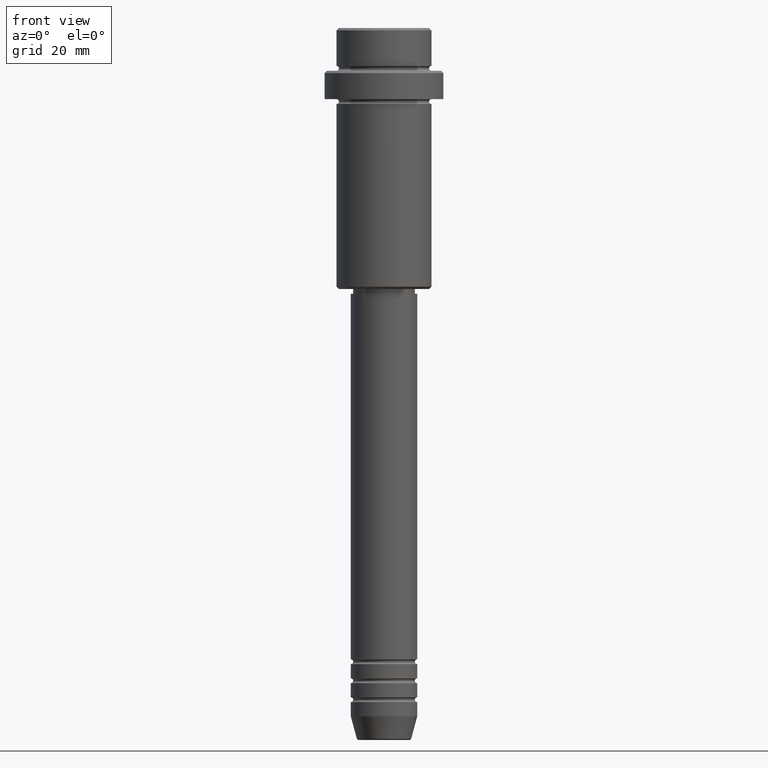
[diagram: clean part render]
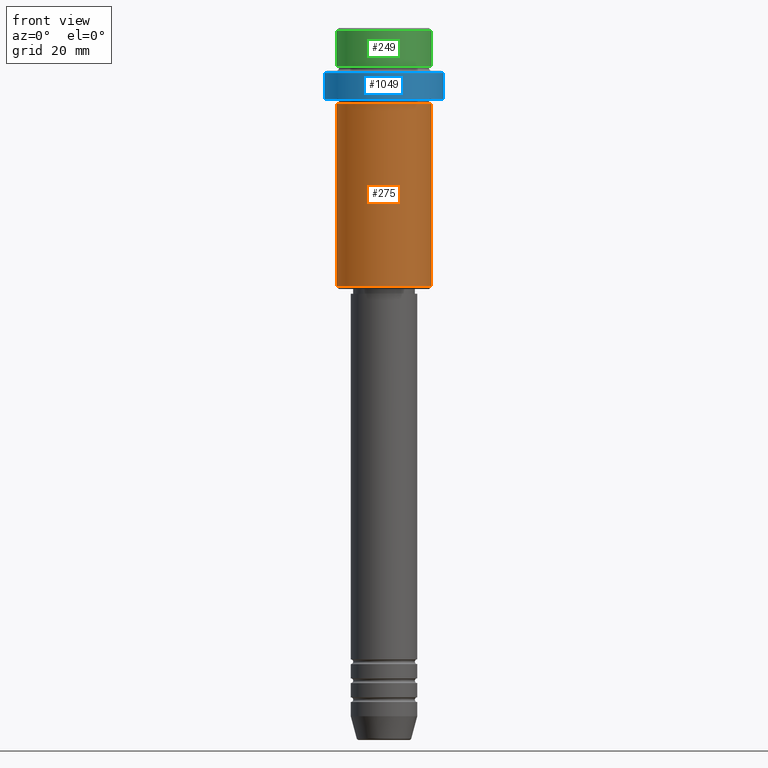
[diagram: same view with three faces highlighted in distinct colors, each labeled with its STEP entity id]
A machine part, front view with three faces highlighted in distinct colors.
Their STEP definitions:

[orange] entity #275 — the highlighted cylindrical surface (partial cylindrical patch) has radius 10 mm, axis along (-0, -0, 1).
#30 = EDGE_CURVE ( 'NONE', #1091, #1097, #124, .T. ) ;
#124 = LINE ( 'NONE', #768, #473 ) ;
#132 = AXIS2_PLACEMENT_3D ( 'NONE', #1025, #608, #934 ) ;
#187 = CARTESIAN_POINT ( 'NONE',  ( -10.00000000000000000, 1.224646799147353256E-15, -16.00000000000000000 ) ) ;
#225 = AXIS2_PLACEMENT_3D ( 'NONE', #1412, #360, #1093 ) ;
#234 = DIRECTION ( 'NONE',  ( -0.000000000000000000, -0.000000000000000000, 1.000000000000000000 ) ) ;
#275 = ADVANCED_FACE ( 'NONE', ( #1276 ), #312, .T. ) ;
#301 = CIRCLE ( 'NONE', #225, 10.00000000000000000 ) ;
#312 = CYLINDRICAL_SURFACE ( 'NONE', #731, 10.00000000000000000 ) ;
#320 = CARTESIAN_POINT ( 'NONE',  ( -10.00000000000000000, 1.224646799147353256E-15, -54.49999999999997868 ) ) ;
#359 = ORIENTED_EDGE ( 'NONE', *, *, #1116, .T. ) ;
#360 = DIRECTION ( 'NONE',  ( -0.000000000000000000, -0.000000000000000000, 1.000000000000000000 ) ) ;
#395 = EDGE_CURVE ( 'NONE', #1097, #1087, #691, .T. ) ;
#421 = CARTESIAN_POINT ( 'NONE',  ( 10.00000000000000000, 0.000000000000000000, -16.00000000000000000 ) ) ;
#473 = VECTOR ( 'NONE', #234, 1000.000000000000000 ) ;
#608 = DIRECTION ( 'NONE',  ( -0.000000000000000000, -0.000000000000000000, 1.000000000000000000 ) ) ;
#691 = CIRCLE ( 'NONE', #132, 10.00000000000000000 ) ;
#700 = DIRECTION ( 'NONE',  ( 1.000000000000000000, 0.000000000000000000, 0.000000000000000000 ) ) ;
#731 = AXIS2_PLACEMENT_3D ( 'NONE', #738, #1362, #700 ) ;
#738 = CARTESIAN_POINT ( 'NONE',  ( 0.000000000000000000, 0.000000000000000000, 0.000000000000000000 ) ) ;
#750 = LINE ( 'NONE', #1187, #1155 ) ;
#763 = VERTEX_POINT ( 'NONE', #792 ) ;
#768 = CARTESIAN_POINT ( 'NONE',  ( -10.00000000000000000, 1.224646799147353256E-15, 0.000000000000000000 ) ) ;
#792 = CARTESIAN_POINT ( 'NONE',  ( 10.00000000000000000, 0.000000000000000000, -54.49999999999997868 ) ) ;
#865 = ORIENTED_EDGE ( 'NONE', *, *, #1197, .T. ) ;
#934 = DIRECTION ( 'NONE',  ( 1.000000000000000000, 0.000000000000000000, 0.000000000000000000 ) ) ;
#948 = DIRECTION ( 'NONE',  ( -0.000000000000000000, -0.000000000000000000, 1.000000000000000000 ) ) ;
#1025 = CARTESIAN_POINT ( 'NONE',  ( 0.000000000000000000, 0.000000000000000000, -16.00000000000000000 ) ) ;
#1087 = VERTEX_POINT ( 'NONE', #421 ) ;
#1091 = VERTEX_POINT ( 'NONE', #320 ) ;
#1093 = DIRECTION ( 'NONE',  ( -1.000000000000000000, 0.000000000000000000, 0.000000000000000000 ) ) ;
#1097 = VERTEX_POINT ( 'NONE', #187 ) ;
#1116 = EDGE_CURVE ( 'NONE', #763, #1087, #750, .T. ) ;
#1155 = VECTOR ( 'NONE', #948, 1000.000000000000000 ) ;
#1187 = CARTESIAN_POINT ( 'NONE',  ( 10.00000000000000000, 0.000000000000000000, 0.000000000000000000 ) ) ;
#1196 = EDGE_LOOP ( 'NONE', ( #1329, #865, #359, #1417 ) ) ;
#1197 = EDGE_CURVE ( 'NONE', #1091, #763, #301, .T. ) ;
#1276 = FACE_OUTER_BOUND ( 'NONE', #1196, .T. ) ;
#1329 = ORIENTED_EDGE ( 'NONE', *, *, #30, .F. ) ;
#1362 = DIRECTION ( 'NONE',  ( -0.000000000000000000, -0.000000000000000000, 1.000000000000000000 ) ) ;
#1412 = CARTESIAN_POINT ( 'NONE',  ( 0.000000000000000000, 0.000000000000000000, -54.49999999999997868 ) ) ;
#1417 = ORIENTED_EDGE ( 'NONE', *, *, #395, .F. ) ;

[blue] entity #1049 — the highlighted cylindrical surface (partial cylindrical patch) has radius 12.5 mm, axis along (-0, -0, 1).
#22 = VERTEX_POINT ( 'NONE', #1342 ) ;
#31 = DIRECTION ( 'NONE',  ( -0.000000000000000000, -0.000000000000000000, 1.000000000000000000 ) ) ;
#34 = DIRECTION ( 'NONE',  ( -0.000000000000000000, -0.000000000000000000, 1.000000000000000000 ) ) ;
#51 = CARTESIAN_POINT ( 'NONE',  ( -12.50000000000000000, 1.530808498934191521E-15, -15.00000000000000178 ) ) ;
#88 = EDGE_CURVE ( 'NONE', #445, #1017, #144, .T. ) ;
#129 = CIRCLE ( 'NONE', #933, 12.50000000000000000 ) ;
#144 = LINE ( 'NONE', #1251, #1368 ) ;
#163 = DIRECTION ( 'NONE',  ( 1.000000000000000000, 0.000000000000000000, 0.000000000000000000 ) ) ;
#209 = DIRECTION ( 'NONE',  ( 1.000000000000000000, 0.000000000000000000, 0.000000000000000000 ) ) ;
#257 = ORIENTED_EDGE ( 'NONE', *, *, #88, .F. ) ;
#272 = ORIENTED_EDGE ( 'NONE', *, *, #922, .T. ) ;
#274 = VECTOR ( 'NONE', #34, 1000.000000000000000 ) ;
#294 = ORIENTED_EDGE ( 'NONE', *, *, #1378, .T. ) ;
#314 = FACE_OUTER_BOUND ( 'NONE', #638, .T. ) ;
#406 = CARTESIAN_POINT ( 'NONE',  ( -12.50000000000000000, 1.530808498934191521E-15, -9.499999999999952038 ) ) ;
#440 = CARTESIAN_POINT ( 'NONE',  ( 12.50000000000000000, 0.000000000000000000, 0.000000000000000000 ) ) ;
#445 = VERTEX_POINT ( 'NONE', #51 ) ;
#447 = LINE ( 'NONE', #440, #274 ) ;
#474 = DIRECTION ( 'NONE',  ( 0.000000000000000000, 0.000000000000000000, -1.000000000000000000 ) ) ;
#480 = DIRECTION ( 'NONE',  ( 1.000000000000000000, 0.000000000000000000, 0.000000000000000000 ) ) ;
#486 = CARTESIAN_POINT ( 'NONE',  ( 0.000000000000000000, 0.000000000000000000, -9.499999999999952038 ) ) ;
#512 = AXIS2_PLACEMENT_3D ( 'NONE', #1048, #1078, #209 ) ;
#626 = CYLINDRICAL_SURFACE ( 'NONE', #512, 12.50000000000000000 ) ;
#638 = EDGE_LOOP ( 'NONE', ( #257, #294, #914, #272 ) ) ;
#817 = EDGE_CURVE ( 'NONE', #1090, #22, #447, .T. ) ;
#859 = AXIS2_PLACEMENT_3D ( 'NONE', #1028, #1370, #480 ) ;
#914 = ORIENTED_EDGE ( 'NONE', *, *, #817, .T. ) ;
#922 = EDGE_CURVE ( 'NONE', #22, #1017, #129, .T. ) ;
#933 = AXIS2_PLACEMENT_3D ( 'NONE', #486, #474, #163 ) ;
#1017 = VERTEX_POINT ( 'NONE', #406 ) ;
#1028 = CARTESIAN_POINT ( 'NONE',  ( 0.000000000000000000, 0.000000000000000000, -15.00000000000000178 ) ) ;
#1048 = CARTESIAN_POINT ( 'NONE',  ( 0.000000000000000000, 0.000000000000000000, 0.000000000000000000 ) ) ;
#1049 = ADVANCED_FACE ( 'NONE', ( #314 ), #626, .T. ) ;
#1078 = DIRECTION ( 'NONE',  ( -0.000000000000000000, -0.000000000000000000, 1.000000000000000000 ) ) ;
#1090 = VERTEX_POINT ( 'NONE', #1180 ) ;
#1180 = CARTESIAN_POINT ( 'NONE',  ( 12.50000000000000000, 0.000000000000000000, -15.00000000000000178 ) ) ;
#1251 = CARTESIAN_POINT ( 'NONE',  ( -12.50000000000000000, 1.530808498934191521E-15, 0.000000000000000000 ) ) ;
#1342 = CARTESIAN_POINT ( 'NONE',  ( 12.50000000000000000, 0.000000000000000000, -9.499999999999952038 ) ) ;
#1368 = VECTOR ( 'NONE', #31, 1000.000000000000000 ) ;
#1370 = DIRECTION ( 'NONE',  ( -0.000000000000000000, -0.000000000000000000, 1.000000000000000000 ) ) ;
#1378 = EDGE_CURVE ( 'NONE', #445, #1090, #1390, .T. ) ;
#1390 = CIRCLE ( 'NONE', #859, 12.50000000000000000 ) ;

[green] entity #249 — the highlighted cylindrical surface (partial cylindrical patch) has radius 10 mm, axis along (-0, -0, 1).
#2 = EDGE_LOOP ( 'NONE', ( #504, #783, #353, #1254 ) ) ;
#12 = VERTEX_POINT ( 'NONE', #864 ) ;
#81 = VECTOR ( 'NONE', #397, 1000.000000000000000 ) ;
#99 = CARTESIAN_POINT ( 'NONE',  ( 9.999999999999998224, 0.000000000000000000, -7.999999999999998224 ) ) ;
#101 = EDGE_CURVE ( 'NONE', #1252, #454, #190, .T. ) ;
#133 = VERTEX_POINT ( 'NONE', #99 ) ;
#148 = DIRECTION ( 'NONE',  ( 1.000000000000000000, 0.000000000000000000, 0.000000000000000000 ) ) ;
#190 = LINE ( 'NONE', #1265, #329 ) ;
#202 = AXIS2_PLACEMENT_3D ( 'NONE', #945, #832, #148 ) ;
#249 = ADVANCED_FACE ( 'NONE', ( #1184 ), #844, .T. ) ;
#282 = CARTESIAN_POINT ( 'NONE',  ( -9.999999999999998224, 1.224646799147353059E-15, -0.4999999999999970024 ) ) ;
#329 = VECTOR ( 'NONE', #1174, 1000.000000000000000 ) ;
#353 = ORIENTED_EDGE ( 'NONE', *, *, #875, .T. ) ;
#397 = DIRECTION ( 'NONE',  ( -0.000000000000000000, -0.000000000000000000, 1.000000000000000000 ) ) ;
#427 = CIRCLE ( 'NONE', #710, 9.999999999999998224 ) ;
#454 = VERTEX_POINT ( 'NONE', #282 ) ;
#455 = CARTESIAN_POINT ( 'NONE',  ( -9.999999999999998224, 1.224646799147353059E-15, -7.999999999999998224 ) ) ;
#504 = ORIENTED_EDGE ( 'NONE', *, *, #101, .F. ) ;
#592 = LINE ( 'NONE', #1366, #81 ) ;
#600 = CIRCLE ( 'NONE', #1172, 9.999999999999998224 ) ;
#686 = DIRECTION ( 'NONE',  ( 1.000000000000000000, 0.000000000000000000, 0.000000000000000000 ) ) ;
#710 = AXIS2_PLACEMENT_3D ( 'NONE', #1385, #836, #723 ) ;
#723 = DIRECTION ( 'NONE',  ( 1.000000000000000000, 0.000000000000000000, 0.000000000000000000 ) ) ;
#783 = ORIENTED_EDGE ( 'NONE', *, *, #866, .T. ) ;
#832 = DIRECTION ( 'NONE',  ( -0.000000000000000000, -0.000000000000000000, 1.000000000000000000 ) ) ;
#836 = DIRECTION ( 'NONE',  ( 0.000000000000000000, 0.000000000000000000, -1.000000000000000000 ) ) ;
#844 = CYLINDRICAL_SURFACE ( 'NONE', #202, 9.999999999999998224 ) ;
#864 = CARTESIAN_POINT ( 'NONE',  ( 9.999999999999998224, 0.000000000000000000, -0.4999999999999970024 ) ) ;
#866 = EDGE_CURVE ( 'NONE', #1252, #133, #600, .T. ) ;
#875 = EDGE_CURVE ( 'NONE', #133, #12, #592, .T. ) ;
#945 = CARTESIAN_POINT ( 'NONE',  ( 0.000000000000000000, 0.000000000000000000, 0.000000000000000000 ) ) ;
#1031 = CARTESIAN_POINT ( 'NONE',  ( 0.000000000000000000, 0.000000000000000000, -7.999999999999998224 ) ) ;
#1121 = EDGE_CURVE ( 'NONE', #12, #454, #427, .T. ) ;
#1172 = AXIS2_PLACEMENT_3D ( 'NONE', #1031, #1237, #686 ) ;
#1174 = DIRECTION ( 'NONE',  ( -0.000000000000000000, -0.000000000000000000, 1.000000000000000000 ) ) ;
#1184 = FACE_OUTER_BOUND ( 'NONE', #2, .T. ) ;
#1237 = DIRECTION ( 'NONE',  ( -0.000000000000000000, -0.000000000000000000, 1.000000000000000000 ) ) ;
#1252 = VERTEX_POINT ( 'NONE', #455 ) ;
#1254 = ORIENTED_EDGE ( 'NONE', *, *, #1121, .T. ) ;
#1265 = CARTESIAN_POINT ( 'NONE',  ( -9.999999999999998224, 1.224646799147353059E-15, 0.000000000000000000 ) ) ;
#1366 = CARTESIAN_POINT ( 'NONE',  ( 9.999999999999998224, 0.000000000000000000, 0.000000000000000000 ) ) ;
#1385 = CARTESIAN_POINT ( 'NONE',  ( 0.000000000000000000, 0.000000000000000000, -0.4999999999999970024 ) ) ;